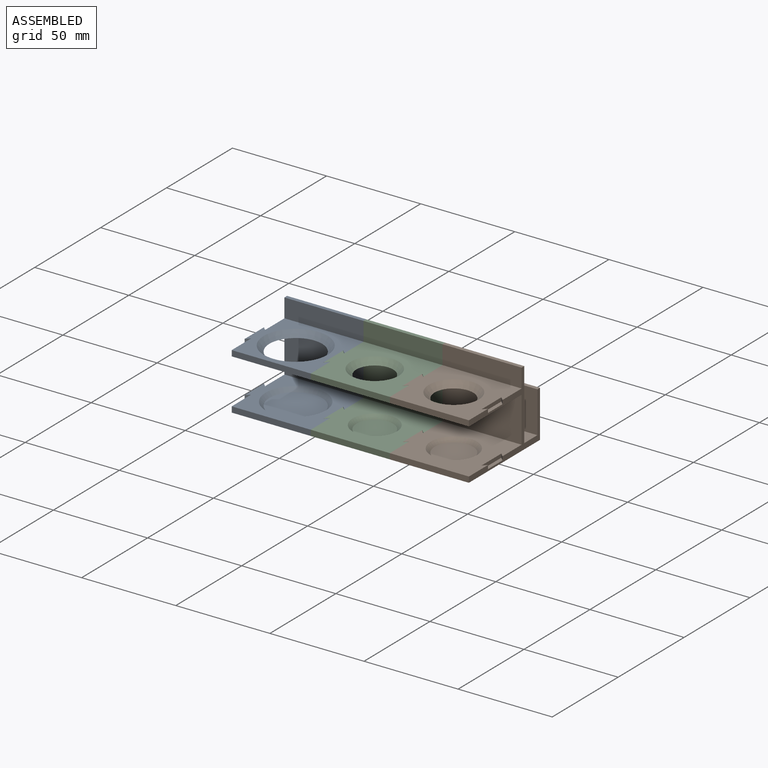
[diagram: assembled view]
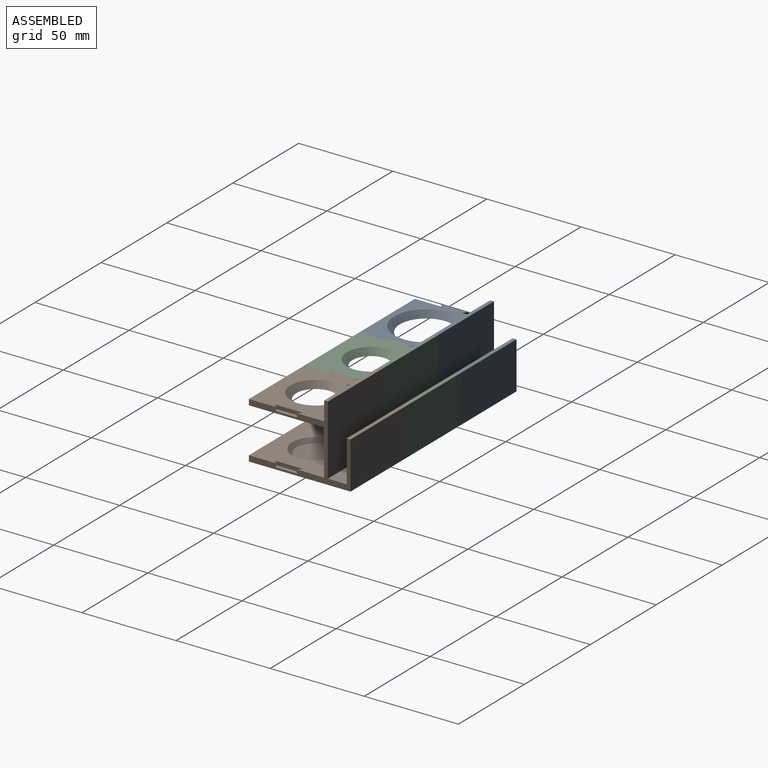
[diagram: assembled view, second angle]
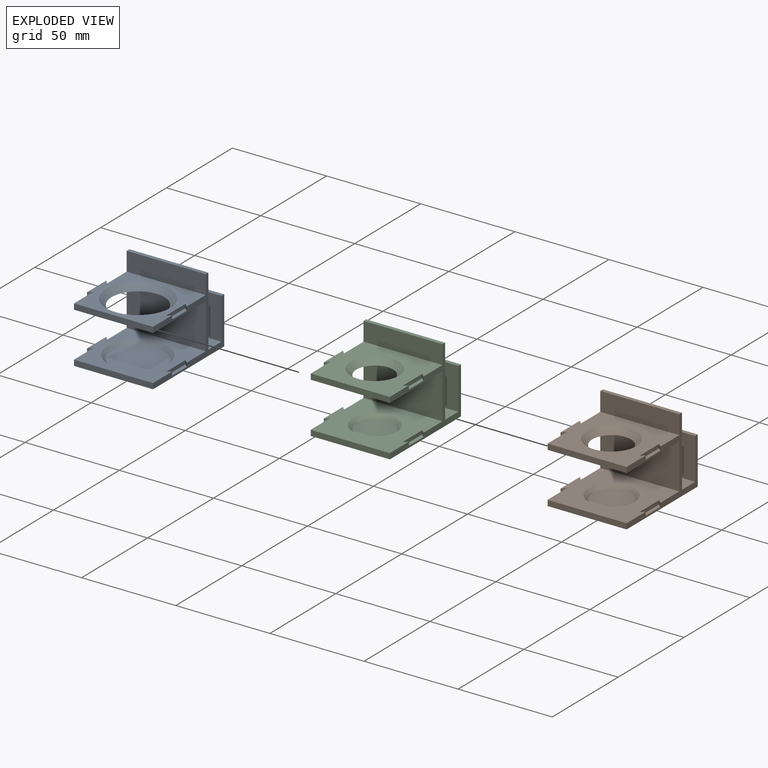
[diagram: exploded view]
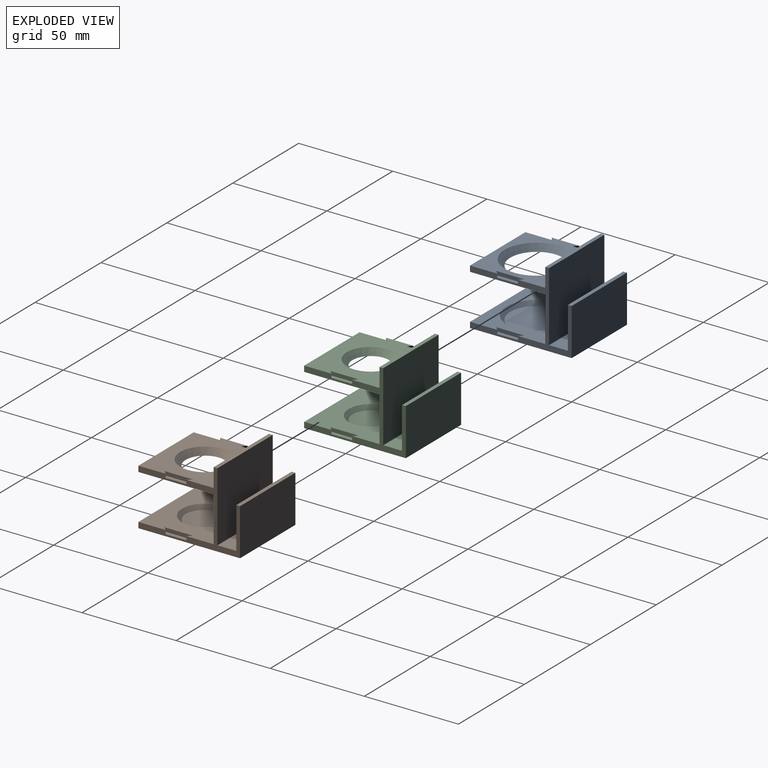
[diagram: exploded view, second angle]
ASSEMBLY  parts=3 mates=2
PART A: 35 faces, bbox 44x54x40 mm
  f0: plane 42x24mm, normal (0,-1,0), area 1008mm2, adj f1,f3,f13,f16
  f1: plane 54x40mm, normal (-1,0,0), area 357.6mm2, adj f0,f2,f4,f5,f7,f9,f13,f14
  f2: plane 42x3mm, normal (0,-1,0), area 126mm2, adj f1,f3,f5,f13
  f3: plane 54x40mm, normal (1,0,0), area 356mm2, adj f0,f2,f4,f5,f6,f10,f12,f13
  f4: plane 42x37mm, normal (0,1,0), area 1554mm2, adj f1,f3,f27,f28
  f5: plane 54x42mm, normal (0,0,-1), area 2268mm2, adj f1,f2,f3,f30
  f6: plane 15x2mm, normal (0,0,1), area 26mm2, adj f3,f10,f11,f12
  f7: plane 2x2mm, normal (0.71,0.71,0), area 5.7mm2, adj f1,f8,f13,f14
  f8: plane 14.6x2mm, normal (-1,0,0), area 29.2mm2, adj f7,f9,f13,f14
  f9: plane 2x2mm, normal (0.71,-0.71,0), area 5.7mm2, adj f1,f8,f13,f14
  f10: plane 2x2mm, normal (-0.71,0.71,0), area 5.7mm2, adj f3,f6,f11,f13
  f11: plane 15x2mm, normal (1,0,0), area 30mm2, adj f6,f10,f12,f13
  f12: plane 2x2mm, normal (-0.71,-0.71,0), area 5.7mm2, adj f3,f6,f11,f13
  f13: plane 44x40mm, normal (0,0,1), area 875mm2, adj f0,f1,f2,f3,f7,f8,f9,f10
  f14: plane 14.6x2mm, normal (0,0,-1), area 25.2mm2, adj f1,f7,f8,f9
  f15: plane 15x2mm, normal (0,0,1), area 26mm2, adj f3,f21,f22,f23
  f16: plane 42x40mm, normal (0,0,-1), area 1064.2mm2, adj f0,f1,f3,f17,f34
  f17: plane 42x3mm, normal (0,-1,0), area 126mm2, adj f1,f3,f16,f24
  f18: plane 2x2mm, normal (0.71,0.71,0), area 5.7mm2, adj f1,f19,f24,f25
  f19: plane 14.6x2mm, normal (-1,0,0), area 29.2mm2, adj f18,f20,f24,f25
  f20: plane 2x2mm, normal (0.71,-0.71,0), area 5.7mm2, adj f1,f19,f24,f25
  f21: plane 2x2mm, normal (-0.71,0.71,0), area 5.7mm2, adj f3,f15,f22,f24
  f22: plane 15x2mm, normal (1,0,0), area 30mm2, adj f15,f21,f23,f24
  f23: plane 2x2mm, normal (-0.71,-0.71,0), area 5.7mm2, adj f3,f15,f22,f24
  f24: plane 44x40mm, normal (0,0,1), area 771.3mm2, adj f1,f3,f17,f18,f19,f20,f21,f22
  f25: plane 14.6x2mm, normal (0,0,-1), area 25.2mm2, adj f1,f18,f19,f20
  f26: plane 42x10mm, normal (0,-1,0), area 420mm2, adj f1,f3,f24,f27
  f27: plane 42x2mm, normal (0,0,1), area 84mm2, adj f1,f3,f4,f26
  f28: plane 42x10mm, normal (0,0,1), area 420mm2, adj f1,f3,f4,f29
  f29: plane 42x22mm, normal (0,-1,0), area 924mm2, adj f1,f3,f28,f31
  f30: plane 42x25mm, normal (0,1,0), area 1050mm2, adj f1,f3,f5,f31
  f31: plane 42x2mm, normal (0,0,1), area 84mm2, adj f1,f3,f29,f30
  f32: plane 28x28mm, normal (0,0,1), area 615.8mm2, adj f33
  f33: cone r=14mm half-angle=45deg, axis (0,0,1), area 266.6mm2, adj f13,f32
  f34: cone r=14mm half-angle=45deg, axis (0,0,1), area 413.2mm2, adj f16,f24
PART B: 35 faces, bbox 44x54x40 mm
  f0: plane 42x24mm, normal (0,-1,0), area 1008mm2, adj f1,f3,f13,f16
  f1: plane 54x40mm, normal (-1,0,0), area 357.6mm2, adj f0,f2,f4,f5,f7,f9,f13,f14
  f2: plane 42x3mm, normal (0,-1,0), area 126mm2, adj f1,f3,f5,f13
  f3: plane 54x40mm, normal (1,0,0), area 356mm2, adj f0,f2,f4,f5,f6,f10,f12,f13
  f4: plane 42x37mm, normal (0,1,0), area 1554mm2, adj f1,f3,f27,f28
  f5: plane 54x42mm, normal (0,0,-1), area 2268mm2, adj f1,f2,f3,f30
  f6: plane 15x2mm, normal (0,0,1), area 26mm2, adj f3,f10,f11,f12
  f7: plane 2x2mm, normal (0.71,0.71,0), area 5.7mm2, adj f1,f8,f13,f14
  f8: plane 14.6x2mm, normal (-1,0,0), area 29.2mm2, adj f7,f9,f13,f14
  f9: plane 2x2mm, normal (0.71,-0.71,0), area 5.7mm2, adj f1,f8,f13,f14
  f10: plane 2x2mm, normal (-0.71,0.71,0), area 5.7mm2, adj f3,f6,f11,f13
  f11: plane 15x2mm, normal (1,0,0), area 30mm2, adj f6,f10,f12,f13
  f12: plane 2x2mm, normal (-0.71,-0.71,0), area 5.7mm2, adj f3,f6,f11,f13
  f13: plane 44x40mm, normal (0,0,1), area 1207.8mm2, adj f0,f1,f2,f3,f7,f8,f9,f10
  f14: plane 14.6x2mm, normal (0,0,-1), area 25.2mm2, adj f1,f7,f8,f9
  f15: plane 15x2mm, normal (0,0,1), area 26mm2, adj f3,f21,f22,f23
  f16: plane 42x40mm, normal (0,0,-1), area 1349.9mm2, adj f0,f1,f3,f17,f34
  f17: plane 42x3mm, normal (0,-1,0), area 126mm2, adj f1,f3,f16,f24
  f18: plane 2x2mm, normal (0.71,0.71,0), area 5.7mm2, adj f1,f19,f24,f25
  f19: plane 14.6x2mm, normal (-1,0,0), area 29.2mm2, adj f18,f20,f24,f25
  f20: plane 2x2mm, normal (0.71,-0.71,0), area 5.7mm2, adj f1,f19,f24,f25
  f21: plane 2x2mm, normal (-0.71,0.71,0), area 5.7mm2, adj f3,f15,f22,f24
  f22: plane 15x2mm, normal (1,0,0), area 30mm2, adj f15,f21,f23,f24
  f23: plane 2x2mm, normal (-0.71,-0.71,0), area 5.7mm2, adj f3,f15,f22,f24
  f24: plane 44x40mm, normal (0,0,1), area 1127.7mm2, adj f1,f3,f17,f18,f19,f20,f21,f22
  f25: plane 14.6x2mm, normal (0,0,-1), area 25.2mm2, adj f1,f18,f19,f20
  f26: plane 42x10mm, normal (0,-1,0), area 420mm2, adj f1,f3,f24,f27
  f27: plane 42x2mm, normal (0,0,1), area 84mm2, adj f1,f3,f4,f26
  f28: plane 42x10mm, normal (0,0,1), area 420mm2, adj f1,f3,f4,f29
  f29: plane 42x22mm, normal (0,-1,0), area 924mm2, adj f1,f3,f28,f31
  f30: plane 42x25mm, normal (0,1,0), area 1050mm2, adj f1,f3,f5,f31
  f31: plane 42x2mm, normal (0,0,1), area 84mm2, adj f1,f3,f29,f30
  f32: plane 20.5x20.5mm, normal (0,0,1), area 330.1mm2, adj f33
  f33: cone r=10.25mm half-angle=45deg, axis (0,0,1), area 199.9mm2, adj f13,f32
  f34: cone r=10.25mm half-angle=45deg, axis (0,0,1), area 313.2mm2, adj f16,f24
PART C: 35 faces, bbox 44x54x40 mm
  f0: plane 42x24mm, normal (0,-1,0), area 1008mm2, adj f1,f3,f13,f16
  f1: plane 54x40mm, normal (-1,0,0), area 357.6mm2, adj f0,f2,f4,f5,f7,f9,f13,f14
  f2: plane 42x3mm, normal (0,-1,0), area 126mm2, adj f1,f3,f5,f13
  f3: plane 54x40mm, normal (1,0,0), area 356mm2, adj f0,f2,f4,f5,f6,f10,f12,f13
  f4: plane 42x37mm, normal (0,1,0), area 1554mm2, adj f1,f3,f27,f28
  f5: plane 54x42mm, normal (0,0,-1), area 2268mm2, adj f1,f2,f3,f30
  f6: plane 15x2mm, normal (0,0,1), area 26mm2, adj f3,f10,f11,f12
  f7: plane 2x2mm, normal (0.71,0.71,0), area 5.7mm2, adj f1,f8,f13,f14
  f8: plane 14.6x2mm, normal (-1,0,0), area 29.2mm2, adj f7,f9,f13,f14
  f9: plane 2x2mm, normal (0.71,-0.71,0), area 5.7mm2, adj f1,f8,f13,f14
  f10: plane 2x2mm, normal (-0.71,0.71,0), area 5.7mm2, adj f3,f6,f11,f13
  f11: plane 15x2mm, normal (1,0,0), area 30mm2, adj f6,f10,f12,f13
  f12: plane 2x2mm, normal (-0.71,-0.71,0), area 5.7mm2, adj f3,f6,f11,f13
  f13: plane 44x40mm, normal (0,0,1), area 1245.5mm2, adj f0,f1,f2,f3,f7,f8,f9,f10
  f14: plane 14.6x2mm, normal (0,0,-1), area 25.2mm2, adj f1,f7,f8,f9
  f15: plane 15x2mm, normal (0,0,1), area 26mm2, adj f3,f21,f22,f23
  f16: plane 42x40mm, normal (0,0,-1), area 1381.4mm2, adj f0,f1,f3,f17,f34
  f17: plane 42x3mm, normal (0,-1,0), area 126mm2, adj f1,f3,f16,f24
  f18: plane 2x2mm, normal (0.71,0.71,0), area 5.7mm2, adj f1,f19,f24,f25
  f19: plane 14.6x2mm, normal (-1,0,0), area 29.2mm2, adj f18,f20,f24,f25
  f20: plane 2x2mm, normal (0.71,-0.71,0), area 5.7mm2, adj f1,f19,f24,f25
  f21: plane 2x2mm, normal (-0.71,0.71,0), area 5.7mm2, adj f3,f15,f22,f24
  f22: plane 15x2mm, normal (1,0,0), area 30mm2, adj f15,f21,f23,f24
  f23: plane 2x2mm, normal (-0.71,-0.71,0), area 5.7mm2, adj f3,f15,f22,f24
  f24: plane 44x40mm, normal (0,0,1), area 1168.5mm2, adj f1,f3,f17,f18,f19,f20,f21,f22
  f25: plane 14.6x2mm, normal (0,0,-1), area 25.2mm2, adj f1,f18,f19,f20
  f26: plane 42x10mm, normal (0,-1,0), area 420mm2, adj f1,f3,f24,f27
  f27: plane 42x2mm, normal (0,0,1), area 84mm2, adj f1,f3,f4,f26
  f28: plane 42x10mm, normal (0,0,1), area 420mm2, adj f1,f3,f4,f29
  f29: plane 42x22mm, normal (0,-1,0), area 924mm2, adj f1,f3,f28,f31
  f30: plane 42x25mm, normal (0,1,0), area 1050mm2, adj f1,f3,f5,f31
  f31: plane 42x2mm, normal (0,0,1), area 84mm2, adj f1,f3,f29,f30
  f32: plane 19.5x19.5mm, normal (0,0,1), area 298.6mm2, adj f33
  f33: cone r=9.75mm half-angle=45deg, axis (0,0,1), area 191mm2, adj f13,f32
  f34: cone r=9.75mm half-angle=45deg, axis (0,0,1), area 299.9mm2, adj f16,f24
PLACE A t=(-51.33,12.88,-9.66)mm
PLACE B t=(-67.33,12.88,-9.66)mm
PLACE C t=(-59.33,12.88,-9.66)mm
MATE fastened A.f22 <-> C.f19  axis (1,0,0) through (-51.33,-7.12,18.34)mm
MATE fastened C.f22 <-> B.f19  axis (1,0,0) through (-9.33,-7.12,18.34)mm
